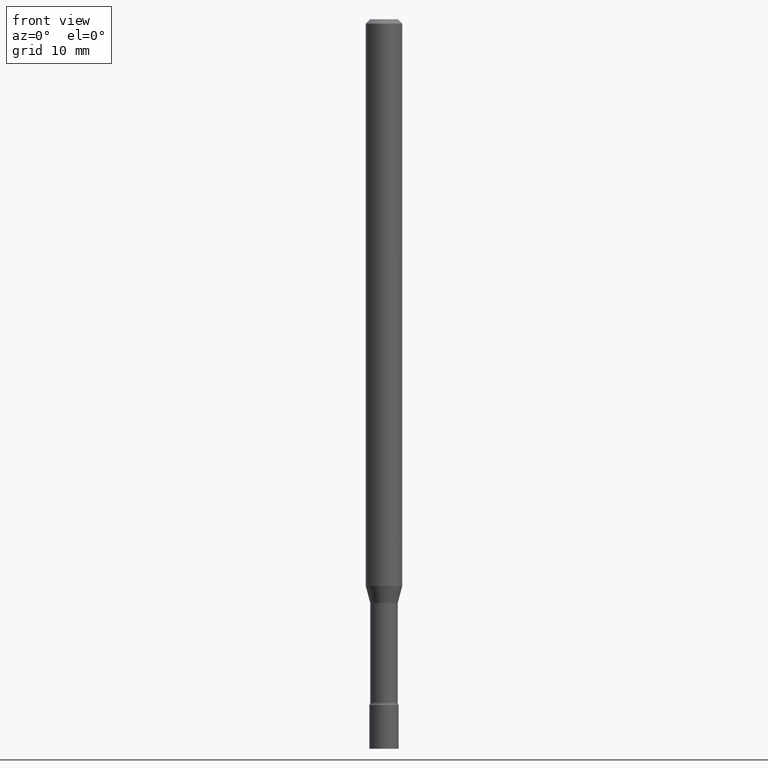
[diagram: clean part render]
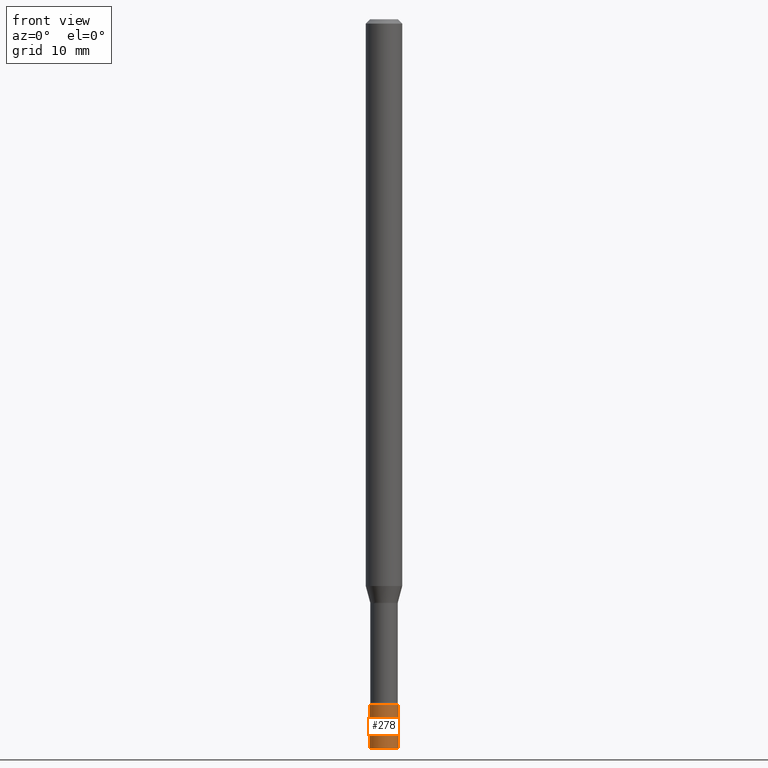
[diagram: same view with one face highlighted and labeled with its STEP entity id]
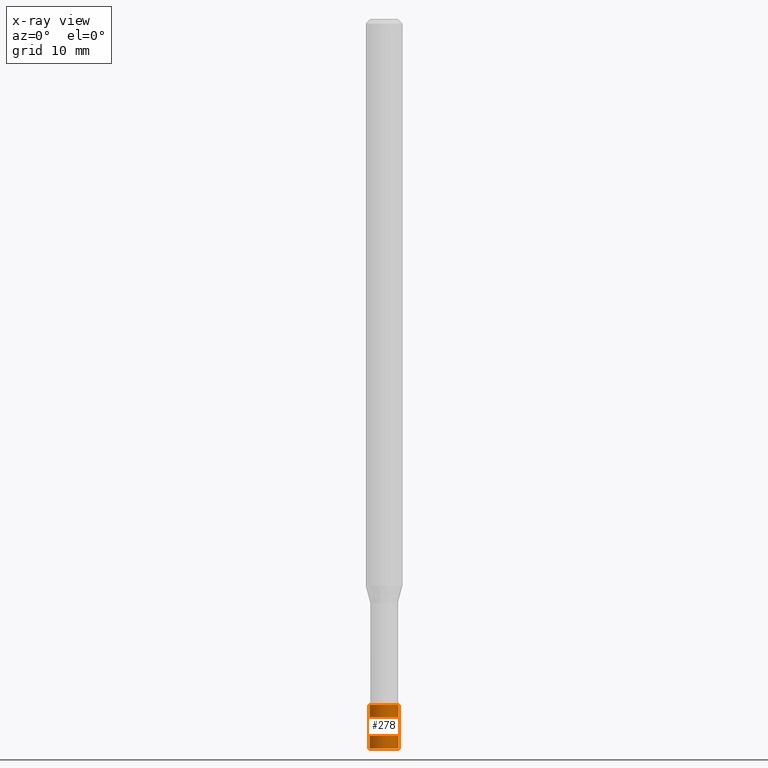
[diagram: x-ray of the same camera — body ghosted, the highlighted face saturated]
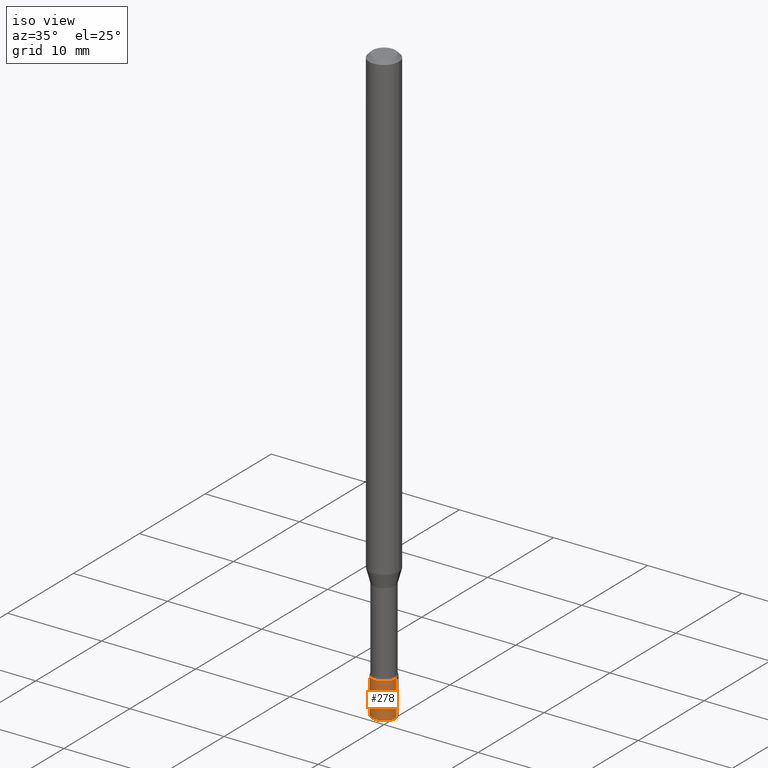
[diagram: same view with one face highlighted and labeled with its STEP entity id]
A machine part, front view. The second image highlights one B-rep face of the part: STEP entity #278.
The next image is the same camera in x-ray: the body ghosted, the highlighted face saturated — about 0% of this face is hidden behind the body in this view.
A second angle (iso view) of the same face is appended — the face is thin or edge-on in the first view.
In plain terms, the highlighted cylindrical surface (edge-blend (fillet) strip) has radius 1.27 mm, axis along (-0, 0, 1).
Its self-contained STEP definition (entity closure, byte-faithful):
#7 = CIRCLE ( 'NONE', #293, 0.05000000000000000278 ) ;
#27 = CARTESIAN_POINT ( 'NONE',  ( 0.05000000000000000278, -8.554129280165705119E-15, -2.349999999999999645 ) ) ;
#34 = ORIENTED_EDGE ( 'NONE', *, *, #73, .T. ) ;
#47 = VECTOR ( 'NONE', #57, 39.37007874015748143 ) ;
#50 = CARTESIAN_POINT ( 'NONE',  ( 0.05000000000000000278, -3.491481338843133848E-16, 2.438088387897968247E-30 ) ) ;
#57 = DIRECTION ( 'NONE',  ( -2.445468806185136877E-29, 3.491481338843145188E-15, 1.000000000000000000 ) ) ;
#69 = CARTESIAN_POINT ( 'NONE',  ( 0.000000000000000000, 0.000000000000000000, 0.000000000000000000 ) ) ;
#73 = EDGE_CURVE ( 'NONE', #196, #320, #251, .T. ) ;
#103 = EDGE_CURVE ( 'NONE', #366, #196, #502, .T. ) ;
#104 = CARTESIAN_POINT ( 'NONE',  ( -0.05000000000000000278, 3.552713678800501127E-16, -2.459467545127453311E-30 ) ) ;
#136 = FACE_OUTER_BOUND ( 'NONE', #153, .T. ) ;
#143 = DIRECTION ( 'NONE',  ( 1.000000000000000000, -6.982962677686267499E-15, 4.876176775795936353E-29 ) ) ;
#146 = ORIENTED_EDGE ( 'NONE', *, *, #298, .F. ) ;
#148 = EDGE_CURVE ( 'NONE', #366, #477, #390, .T. ) ;
#153 = EDGE_LOOP ( 'NONE', ( #438, #491, #34, #146 ) ) ;
#161 = CARTESIAN_POINT ( 'NONE',  ( 6.113672015462842613E-29, -8.728703347107864943E-15, -2.500000000000000000 ) ) ;
#195 = CARTESIAN_POINT ( 'NONE',  ( -0.05000000000000000278, -8.111570878814577955E-15, -2.500000000000000000 ) ) ;
#196 = VERTEX_POINT ( 'NONE', #343 ) ;
#210 = DIRECTION ( 'NONE',  ( 1.000000000000000000, -6.982962677686274599E-15, 0.000000000000000000 ) ) ;
#214 = DIRECTION ( 'NONE',  ( -2.445468806185136597E-29, 3.491481338843145583E-15, 1.000000000000000000 ) ) ;
#218 = DIRECTION ( 'NONE',  ( 1.000000000000000000, -6.982962677686274599E-15, 0.000000000000000000 ) ) ;
#222 = DIRECTION ( 'NONE',  ( -2.445468806185136597E-29, 3.491481338843145583E-15, 1.000000000000000000 ) ) ;
#225 = AXIS2_PLACEMENT_3D ( 'NONE', #69, #222, #143 ) ;
#251 = LINE ( 'NONE', #50, #47 ) ;
#259 = AXIS2_PLACEMENT_3D ( 'NONE', #161, #413, #210 ) ;
#278 = ADVANCED_FACE ( 'NONE', ( #136 ), #423, .T. ) ;
#293 = AXIS2_PLACEMENT_3D ( 'NONE', #349, #214, #218 ) ;
#298 = EDGE_CURVE ( 'NONE', #477, #320, #7, .T. ) ;
#320 = VERTEX_POINT ( 'NONE', #27 ) ;
#343 = CARTESIAN_POINT ( 'NONE',  ( 0.05000000000000000278, -9.077851480992178278E-15, -2.500000000000000000 ) ) ;
#349 = CARTESIAN_POINT ( 'NONE',  ( 5.746851694535070554E-29, -8.204981146281391784E-15, -2.349999999999999645 ) ) ;
#354 = VECTOR ( 'NONE', #437, 39.37007874015748143 ) ;
#366 = VERTEX_POINT ( 'NONE', #195 ) ;
#390 = LINE ( 'NONE', #104, #354 ) ;
#413 = DIRECTION ( 'NONE',  ( -2.445468806185136597E-29, 3.491481338843145583E-15, 1.000000000000000000 ) ) ;
#423 = CYLINDRICAL_SURFACE ( 'NONE', #225, 0.05000000000000000278 ) ;
#437 = DIRECTION ( 'NONE',  ( -2.445468806185136877E-29, 3.491481338843145188E-15, 1.000000000000000000 ) ) ;
#438 = ORIENTED_EDGE ( 'NONE', *, *, #148, .F. ) ;
#477 = VERTEX_POINT ( 'NONE', #484 ) ;
#484 = CARTESIAN_POINT ( 'NONE',  ( -0.05000000000000000278, -8.111570878814577955E-15, -2.349999999999999645 ) ) ;
#491 = ORIENTED_EDGE ( 'NONE', *, *, #103, .T. ) ;
#502 = CIRCLE ( 'NONE', #259, 0.05000000000000000278 ) ;